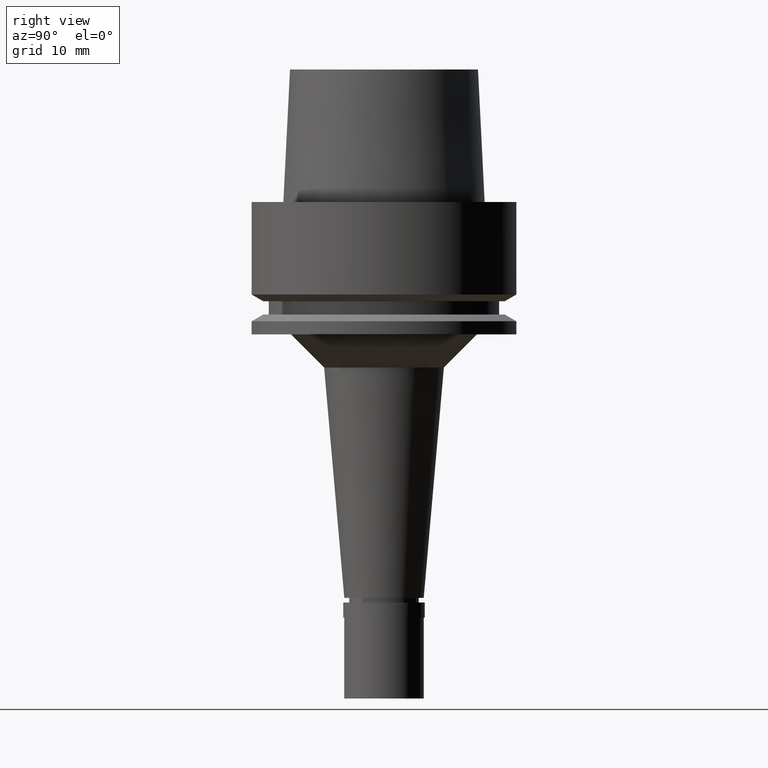
[diagram: clean part render]
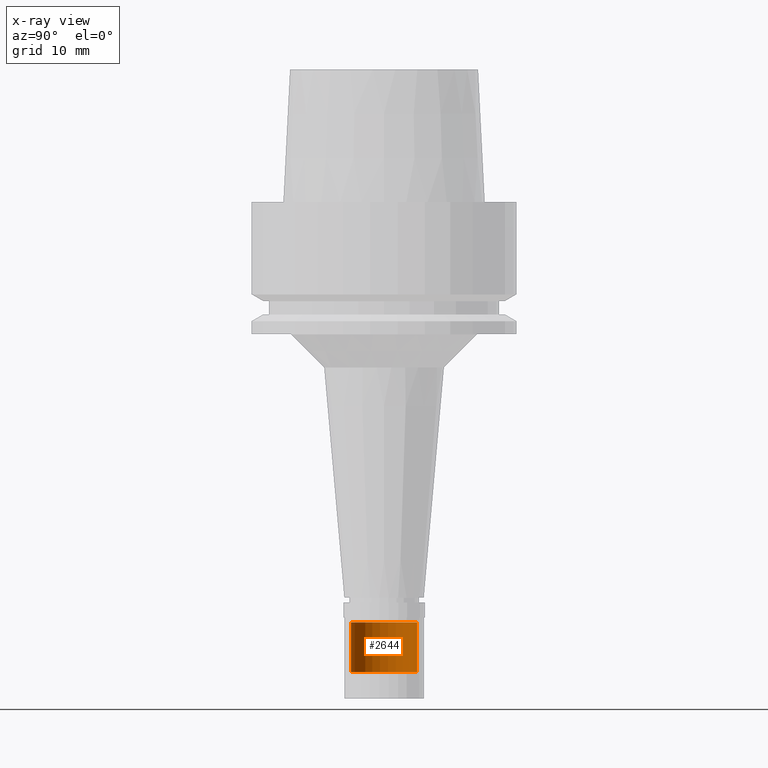
[diagram: x-ray — body ghosted, one internal face saturated and labeled with its STEP entity id]
A machine part, right view, then the same camera in x-ray: the body is ghosted and one INTERNAL B-rep face — a face not visible from any outside direction — is saturated and labeled: STEP entity #2644.
In plain terms, the highlighted cylindrical surface (edge-blend (fillet) strip) has radius 5 mm, axis along (0, 0, 1).
Its self-contained STEP definition (entity closure, byte-faithful):
#241 = CARTESIAN_POINT ( 'NONE',  ( 0.0000000000000000000, 0.0000000000000000000, -63.50000000000000000 ) ) ;
#258 = CARTESIAN_POINT ( 'NONE',  ( 0.0000000000000000000, 5.000000000000000000, -71.00000000000000000 ) ) ;
#371 = CARTESIAN_POINT ( 'NONE',  ( 0.0000000000000000000, -5.000000000000000000, -71.00000000000000000 ) ) ;
#386 = CARTESIAN_POINT ( 'NONE',  ( 0.0000000000000000000, -5.000000000000000000, -63.50000000000000000 ) ) ;
#391 = DIRECTION ( 'NONE',  ( 0.0000000000000000000, 0.0000000000000000000, -1.000000000000000000 ) ) ;
#411 = EDGE_CURVE ( 'NONE', #2052, #416, #1613, .T. ) ;
#416 = VERTEX_POINT ( 'NONE', #371 ) ;
#607 = DIRECTION ( 'NONE',  ( 0.0000000000000000000, 0.0000000000000000000, -1.000000000000000000 ) ) ;
#689 = DIRECTION ( 'NONE',  ( 0.0000000000000000000, 0.0000000000000000000, 1.000000000000000000 ) ) ;
#859 = CARTESIAN_POINT ( 'NONE',  ( 0.0000000000000000000, 0.0000000000000000000, -71.00000000000000000 ) ) ;
#936 = EDGE_CURVE ( 'NONE', #2014, #998, #1378, .T. ) ;
#972 = ORIENTED_EDGE ( 'NONE', *, *, #936, .T. ) ;
#985 = VECTOR ( 'NONE', #607, 1000.000000000000000 ) ;
#998 = VERTEX_POINT ( 'NONE', #1886 ) ;
#1090 = ORIENTED_EDGE ( 'NONE', *, *, #1581, .T. ) ;
#1122 = FACE_OUTER_BOUND ( 'NONE', #1830, .T. ) ;
#1141 = LINE ( 'NONE', #386, #985 ) ;
#1181 = ORIENTED_EDGE ( 'NONE', *, *, #411, .T. ) ;
#1346 = CARTESIAN_POINT ( 'NONE',  ( 0.0000000000000000000, -5.000000000000000000, -63.50000000000000000 ) ) ;
#1378 = CIRCLE ( 'NONE', #2239, 5.000000000000000000 ) ;
#1466 = VECTOR ( 'NONE', #2328, 1000.000000000000000 ) ;
#1512 = LINE ( 'NONE', #2544, #1466 ) ;
#1514 = ORIENTED_EDGE ( 'NONE', *, *, #2146, .F. ) ;
#1521 = DIRECTION ( 'NONE',  ( 0.0000000000000000000, 1.000000000000000000, 0.0000000000000000000 ) ) ;
#1581 = EDGE_CURVE ( 'NONE', #998, #2052, #1512, .T. ) ;
#1613 = CIRCLE ( 'NONE', #2424, 5.000000000000000000 ) ;
#1830 = EDGE_LOOP ( 'NONE', ( #1181, #1514, #972, #1090 ) ) ;
#1886 = CARTESIAN_POINT ( 'NONE',  ( 0.0000000000000000000, 5.000000000000000000, -63.50000000000000000 ) ) ;
#1995 = CYLINDRICAL_SURFACE ( 'NONE', #2374, 5.000000000000000000 ) ;
#2014 = VERTEX_POINT ( 'NONE', #1346 ) ;
#2052 = VERTEX_POINT ( 'NONE', #258 ) ;
#2135 = CARTESIAN_POINT ( 'NONE',  ( 0.0000000000000000000, 0.0000000000000000000, -75.55000000000001137 ) ) ;
#2146 = EDGE_CURVE ( 'NONE', #2014, #416, #1141, .T. ) ;
#2239 = AXIS2_PLACEMENT_3D ( 'NONE', #241, #391, #2297 ) ;
#2266 = DIRECTION ( 'NONE',  ( 0.0000000000000000000, 1.000000000000000000, 0.0000000000000000000 ) ) ;
#2297 = DIRECTION ( 'NONE',  ( 0.0000000000000000000, -1.000000000000000000, 0.0000000000000000000 ) ) ;
#2328 = DIRECTION ( 'NONE',  ( 0.0000000000000000000, 0.0000000000000000000, -1.000000000000000000 ) ) ;
#2374 = AXIS2_PLACEMENT_3D ( 'NONE', #2135, #689, #1521 ) ;
#2424 = AXIS2_PLACEMENT_3D ( 'NONE', #859, #2473, #2266 ) ;
#2473 = DIRECTION ( 'NONE',  ( 0.0000000000000000000, 0.0000000000000000000, 1.000000000000000000 ) ) ;
#2544 = CARTESIAN_POINT ( 'NONE',  ( 0.0000000000000000000, 5.000000000000000000, -63.50000000000000000 ) ) ;
#2644 = ADVANCED_FACE ( 'NONE', ( #1122 ), #1995, .T. ) ;